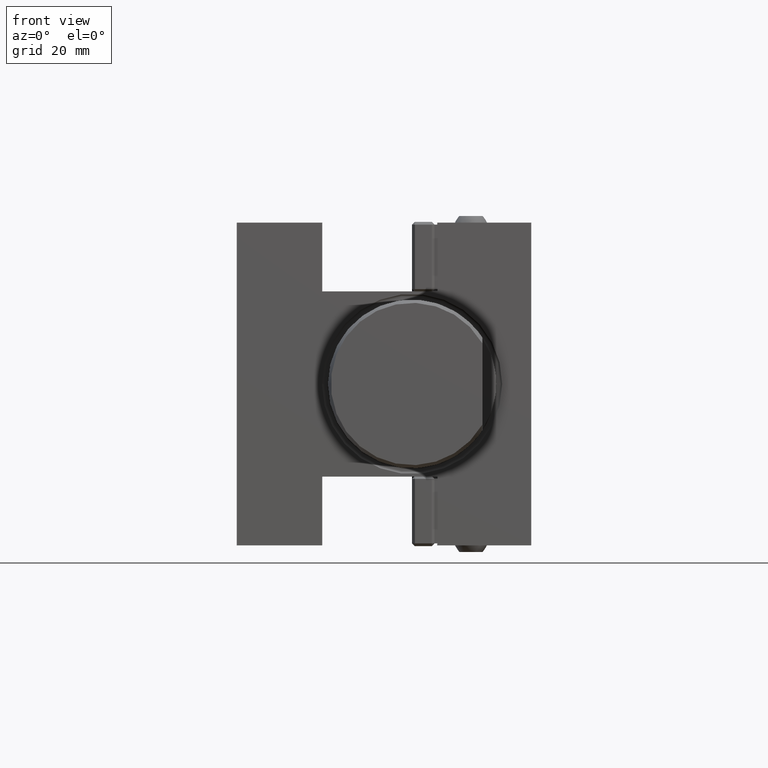
[diagram: clean part render]
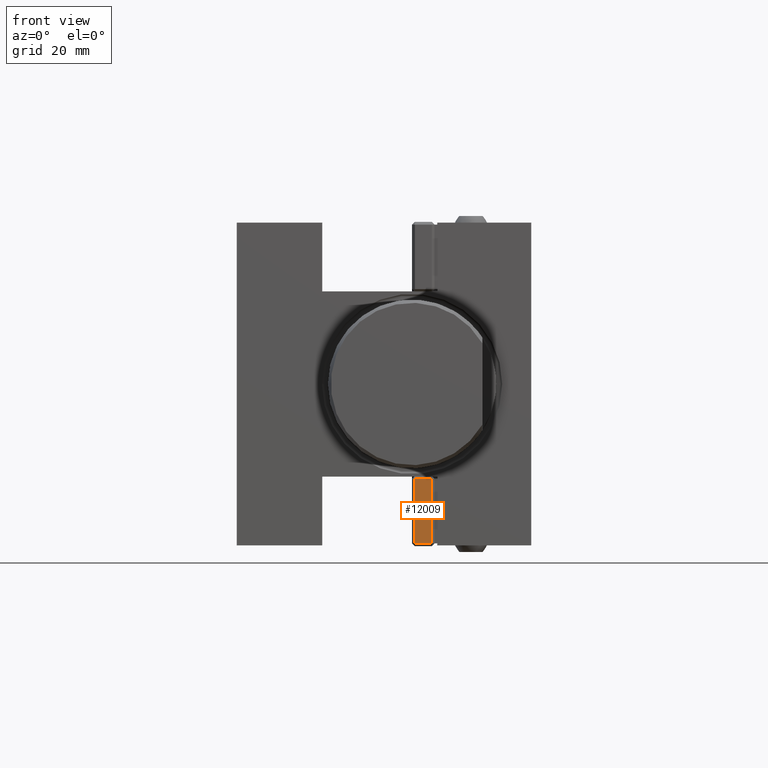
[diagram: same view with one face highlighted and labeled with its STEP entity id]
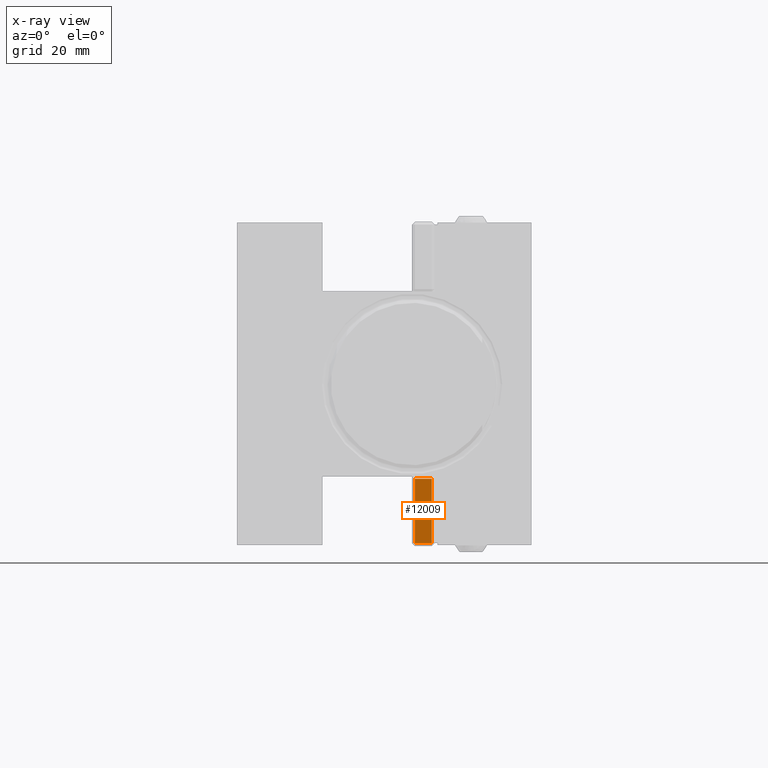
[diagram: x-ray of the same camera — body ghosted, the highlighted face saturated]
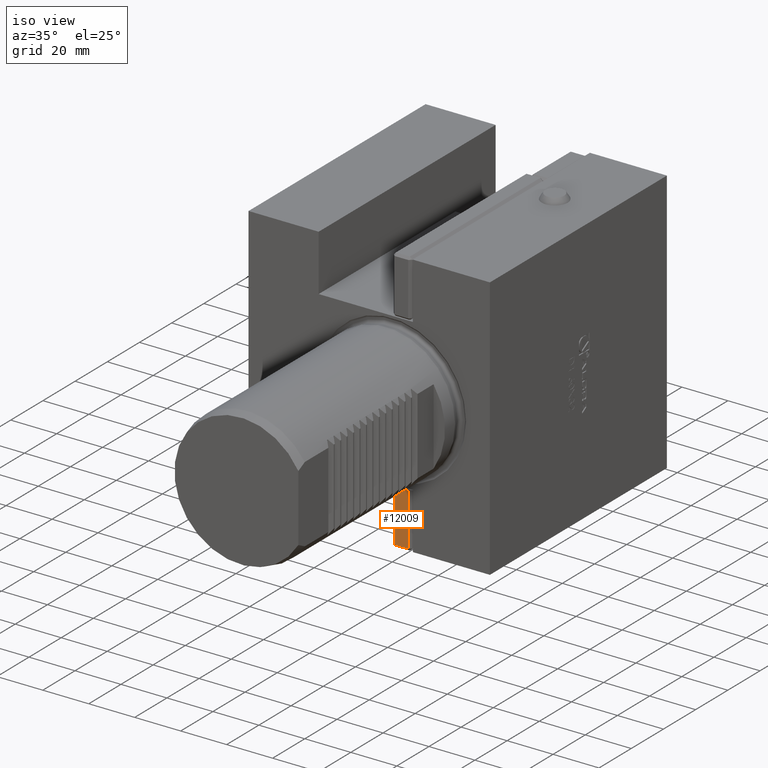
[diagram: same view with one face highlighted and labeled with its STEP entity id]
A machine part, front view. The second image highlights one B-rep face of the part: STEP entity #12009.
The next image is the same camera in x-ray: the body ghosted, the highlighted face saturated — about 0% of this face is hidden behind the body in this view.
A second angle (iso view) of the same face is appended — the face is thin or edge-on in the first view.
In plain terms, the highlighted planar face has unit normal (-0, 1, 0).
Its self-contained STEP definition (entity closure, byte-faithful):
#193 = EDGE_LOOP ( 'NONE', ( #3574, #6979, #11058, #3908 ) ) ;
#424 = EDGE_CURVE ( 'NONE', #1029, #17312, #13260, .T. ) ;
#1029 = VERTEX_POINT ( 'NONE', #10914 ) ;
#2241 = FACE_OUTER_BOUND ( 'NONE', #193, .T. ) ;
#2558 = DIRECTION ( 'NONE',  ( 1.206764157201248663E-16, -5.551115123125781470E-17, 1.000000000000000000 ) ) ;
#2887 = CARTESIAN_POINT ( 'NONE',  ( 0.9999999999999892308, -1.387778780781445676E-14, -56.80000000000003268 ) ) ;
#3502 = CARTESIAN_POINT ( 'NONE',  ( 6.999999999999990230, -1.387778780781445676E-14, -33.79999999999999716 ) ) ;
#3574 = ORIENTED_EDGE ( 'NONE', *, *, #424, .T. ) ;
#3592 = CARTESIAN_POINT ( 'NONE',  ( 6.999999999999987566, -1.387778780781445676E-14, -56.80000000000003268 ) ) ;
#3908 = ORIENTED_EDGE ( 'NONE', *, *, #7346, .T. ) ;
#4786 = LINE ( 'NONE', #5047, #7618 ) ;
#4825 = LINE ( 'NONE', #7541, #6610 ) ;
#4972 = CARTESIAN_POINT ( 'NONE',  ( 0.9999999999999904521, -1.387778780781445676E-14, -45.29999999999999716 ) ) ;
#5047 = CARTESIAN_POINT ( 'NONE',  ( 3.999999999999992450, -1.387778780781445676E-14, -33.79999999999999716 ) ) ;
#5527 = VERTEX_POINT ( 'NONE', #3502 ) ;
#6165 = PLANE ( 'NONE',  #15144 ) ;
#6292 = DIRECTION ( 'NONE',  ( -1.000000000000000000, -5.587541449090065268E-31, 1.206764157201250882E-16 ) ) ;
#6610 = VECTOR ( 'NONE', #15192, 1000.000000000000000 ) ;
#6979 = ORIENTED_EDGE ( 'NONE', *, *, #10874, .T. ) ;
#7346 = EDGE_CURVE ( 'NONE', #5527, #1029, #4786, .T. ) ;
#7541 = CARTESIAN_POINT ( 'NONE',  ( 3.999999999999987121, -1.387778780781445676E-14, -56.80000000000003268 ) ) ;
#7568 = DIRECTION ( 'NONE',  ( -4.843295129711203237E-31, 1.000000000000000000, 5.551115123125781470E-17 ) ) ;
#7608 = DIRECTION ( 'NONE',  ( -1.206764157201248663E-16, 5.551115123125781470E-17, -1.000000000000000000 ) ) ;
#7618 = VECTOR ( 'NONE', #6292, 1000.000000000000000 ) ;
#9316 = LINE ( 'NONE', #16219, #16061 ) ;
#10185 = VERTEX_POINT ( 'NONE', #3592 ) ;
#10874 = EDGE_CURVE ( 'NONE', #17312, #10185, #4825, .T. ) ;
#10914 = CARTESIAN_POINT ( 'NONE',  ( 0.9999999999999913403, -1.387778780781445676E-14, -33.79999999999999716 ) ) ;
#11058 = ORIENTED_EDGE ( 'NONE', *, *, #16452, .T. ) ;
#11480 = VECTOR ( 'NONE', #7608, 1000.000000000000000 ) ;
#12009 = ADVANCED_FACE ( 'Defeature completata2_85', ( #2241 ), #6165, .F. ) ;
#13260 = LINE ( 'NONE', #4972, #11480 ) ;
#15144 = AXIS2_PLACEMENT_3D ( 'NONE', #16538, #7568, #15212 ) ;
#15192 = DIRECTION ( 'NONE',  ( 1.000000000000000000, 5.587541449090065268E-31, -1.206764157201250882E-16 ) ) ;
#15212 = DIRECTION ( 'NONE',  ( 1.206764157201248417E-16, -5.551115123125781470E-17, 1.000000000000000000 ) ) ;
#16061 = VECTOR ( 'NONE', #2558, 1000.000000000000000 ) ;
#16219 = CARTESIAN_POINT ( 'NONE',  ( 6.999999999999988454, -1.387778780781445676E-14, -45.29999999999999716 ) ) ;
#16452 = EDGE_CURVE ( 'NONE', #10185, #5527, #9316, .T. ) ;
#16538 = CARTESIAN_POINT ( 'NONE',  ( 3.999999999999989786, -1.387778780781445676E-14, -45.29999999999999716 ) ) ;
#17312 = VERTEX_POINT ( 'NONE', #2887 ) ;